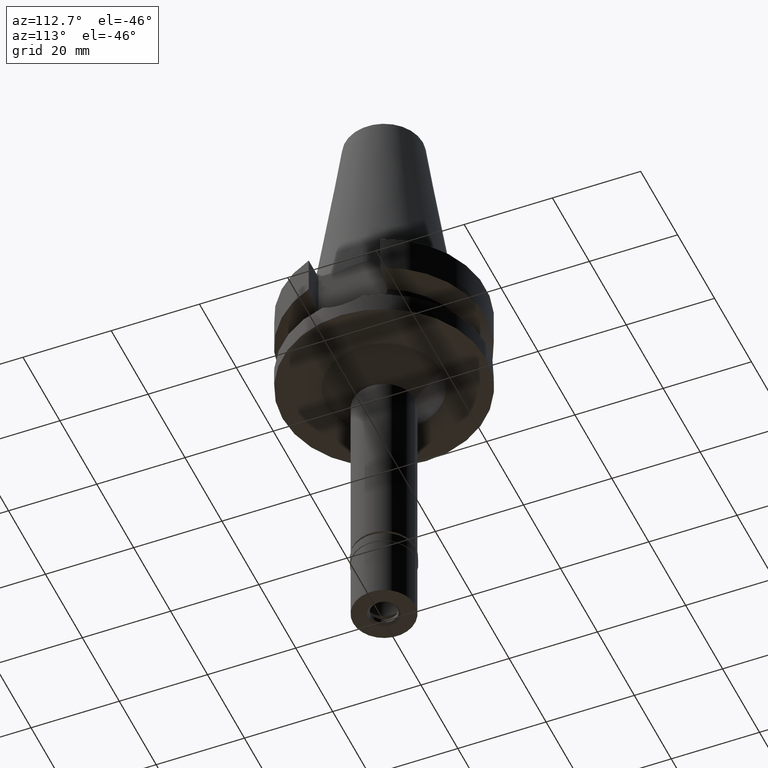
[diagram: clean part render]
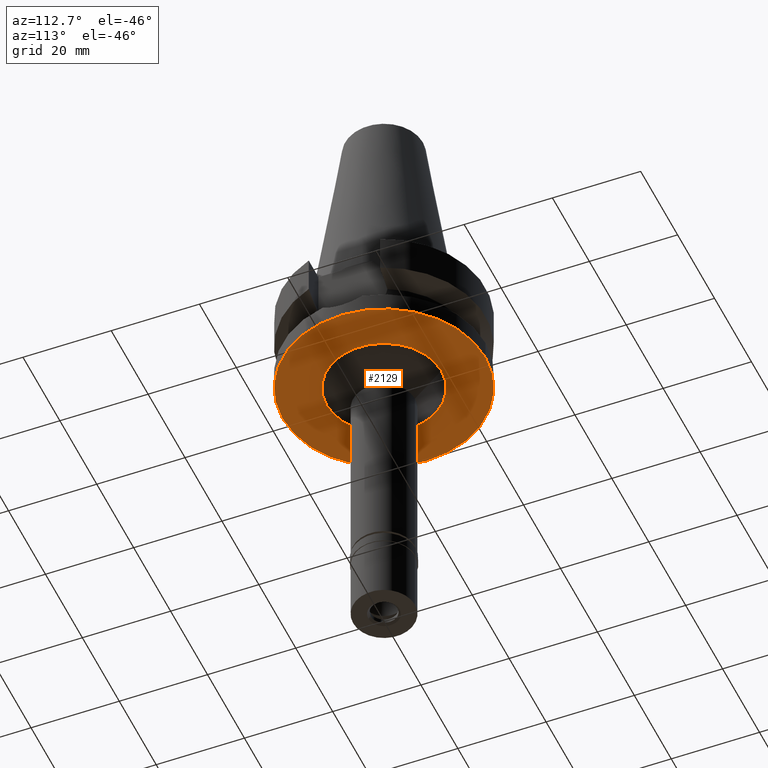
[diagram: same view with one face highlighted and labeled with its STEP entity id]
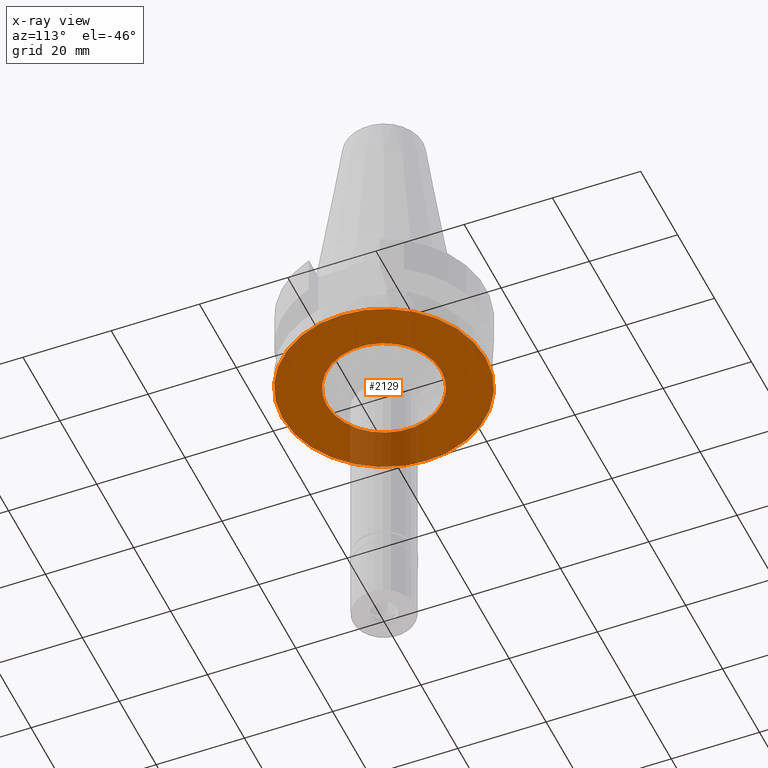
[diagram: x-ray of the same camera — body ghosted, the highlighted face saturated]
A machine part, auxiliary view. The second image highlights one B-rep face of the part: STEP entity #2129.
The next image is the same camera in x-ray: the body ghosted, the highlighted face saturated — about 13% of this face is hidden behind the body in this view.
In plain terms, the highlighted planar face has unit normal (0, 0, -1).
Its self-contained STEP definition (entity closure, byte-faithful):
#203 = DIRECTION ( 'NONE',  ( 0.0000000000000000000, 0.0000000000000000000, -1.000000000000000000 ) ) ;
#217 = AXIS2_PLACEMENT_3D ( 'NONE', #2650, #835, #429 ) ;
#323 = CARTESIAN_POINT ( 'NONE',  ( 0.0000000000000000000, -23.00179173279000011, -22.00000000000000000 ) ) ;
#429 = DIRECTION ( 'NONE',  ( 0.0000000000000000000, -1.000000000000000000, 0.0000000000000000000 ) ) ;
#503 = CARTESIAN_POINT ( 'NONE',  ( 0.0000000000000000000, 13.00179173278999833, -22.00000000000000000 ) ) ;
#555 = VERTEX_POINT ( 'NONE', #503 ) ;
#613 = AXIS2_PLACEMENT_3D ( 'NONE', #2685, #1564, #2485 ) ;
#636 = EDGE_CURVE ( 'NONE', #1838, #787, #1438, .T. ) ;
#662 = FACE_OUTER_BOUND ( 'NONE', #1595, .T. ) ;
#787 = VERTEX_POINT ( 'NONE', #788 ) ;
#788 = CARTESIAN_POINT ( 'NONE',  ( 0.0000000000000000000, 23.00179173279000011, -22.00000000000000000 ) ) ;
#832 = FACE_BOUND ( 'NONE', #1330, .T. ) ;
#835 = DIRECTION ( 'NONE',  ( 0.0000000000000000000, 0.0000000000000000000, 1.000000000000000000 ) ) ;
#901 = CARTESIAN_POINT ( 'NONE',  ( 0.0000000000000000000, 0.0000000000000000000, -22.00000000000000000 ) ) ;
#940 = AXIS2_PLACEMENT_3D ( 'NONE', #2146, #2788, #1701 ) ;
#1118 = EDGE_CURVE ( 'NONE', #555, #1818, #1674, .T. ) ;
#1132 = CIRCLE ( 'NONE', #940, 13.00179173278999833 ) ;
#1162 = CARTESIAN_POINT ( 'NONE',  ( 0.0000000000000000000, -13.00179173278999833, -22.00000000000000000 ) ) ;
#1212 = CIRCLE ( 'NONE', #613, 23.00179173279000011 ) ;
#1330 = EDGE_LOOP ( 'NONE', ( #2004, #1807 ) ) ;
#1438 = CIRCLE ( 'NONE', #217, 23.00179173279000011 ) ;
#1447 = AXIS2_PLACEMENT_3D ( 'NONE', #901, #1804, #2690 ) ;
#1564 = DIRECTION ( 'NONE',  ( 0.0000000000000000000, 0.0000000000000000000, 1.000000000000000000 ) ) ;
#1595 = EDGE_LOOP ( 'NONE', ( #2266, #2625 ) ) ;
#1674 = CIRCLE ( 'NONE', #1447, 13.00179173278999833 ) ;
#1701 = DIRECTION ( 'NONE',  ( 0.0000000000000000000, -1.000000000000000000, 0.0000000000000000000 ) ) ;
#1716 = DIRECTION ( 'NONE',  ( 0.0000000000000000000, -1.000000000000000000, 0.0000000000000000000 ) ) ;
#1804 = DIRECTION ( 'NONE',  ( 0.0000000000000000000, 0.0000000000000000000, -1.000000000000000000 ) ) ;
#1807 = ORIENTED_EDGE ( 'NONE', *, *, #1934, .F. ) ;
#1818 = VERTEX_POINT ( 'NONE', #1162 ) ;
#1838 = VERTEX_POINT ( 'NONE', #323 ) ;
#1934 = EDGE_CURVE ( 'NONE', #1818, #555, #1132, .T. ) ;
#2004 = ORIENTED_EDGE ( 'NONE', *, *, #1118, .F. ) ;
#2129 = ADVANCED_FACE ( 'NONE', ( #662, #832 ), #2462, .T. ) ;
#2146 = CARTESIAN_POINT ( 'NONE',  ( 0.0000000000000000000, 0.0000000000000000000, -22.00000000000000000 ) ) ;
#2222 = CARTESIAN_POINT ( 'NONE',  ( 0.0000000000000000000, 0.0000000000000000000, -22.00000000000000000 ) ) ;
#2266 = ORIENTED_EDGE ( 'NONE', *, *, #2672, .F. ) ;
#2462 = PLANE ( 'NONE',  #2563 ) ;
#2485 = DIRECTION ( 'NONE',  ( 0.0000000000000000000, 1.000000000000000000, 0.0000000000000000000 ) ) ;
#2563 = AXIS2_PLACEMENT_3D ( 'NONE', #2222, #203, #1716 ) ;
#2625 = ORIENTED_EDGE ( 'NONE', *, *, #636, .F. ) ;
#2650 = CARTESIAN_POINT ( 'NONE',  ( 0.0000000000000000000, 1.899672114836999856E-14, -22.00000000000000000 ) ) ;
#2672 = EDGE_CURVE ( 'NONE', #787, #1838, #1212, .T. ) ;
#2685 = CARTESIAN_POINT ( 'NONE',  ( 0.0000000000000000000, 1.899672114836999856E-14, -22.00000000000000000 ) ) ;
#2690 = DIRECTION ( 'NONE',  ( 0.0000000000000000000, 1.000000000000000000, 0.0000000000000000000 ) ) ;
#2788 = DIRECTION ( 'NONE',  ( 0.0000000000000000000, 0.0000000000000000000, -1.000000000000000000 ) ) ;